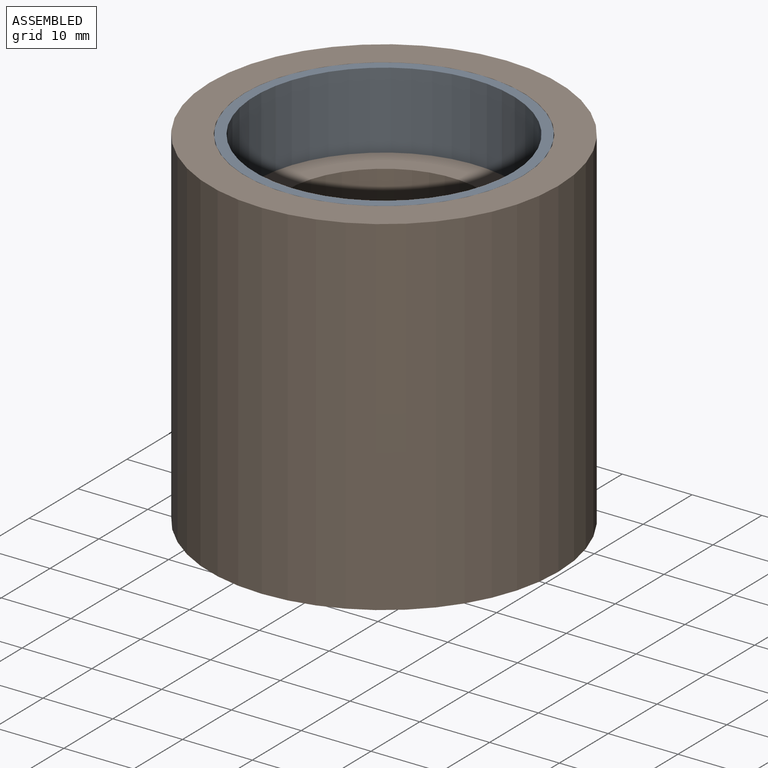
[diagram: assembled view]
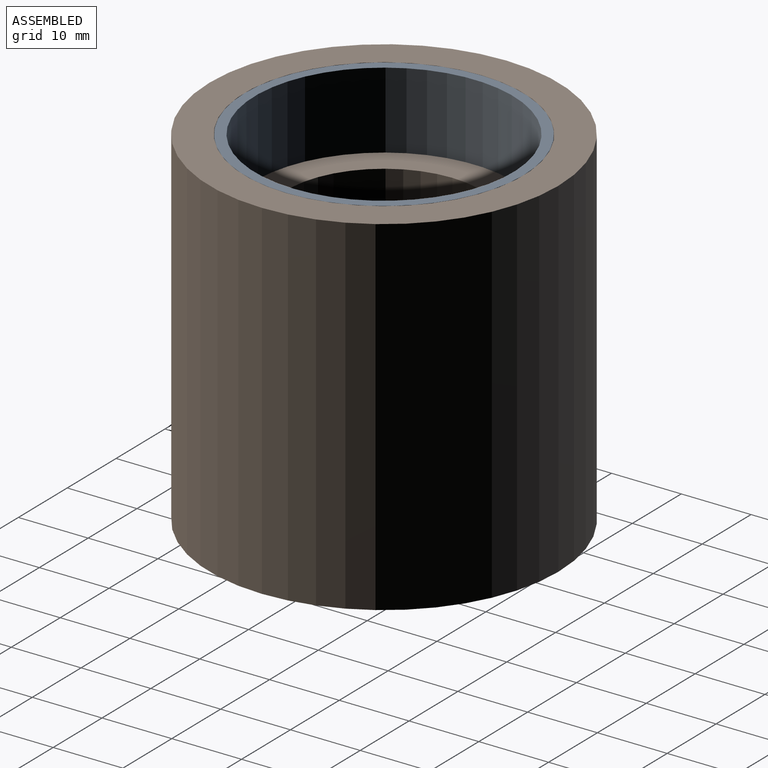
[diagram: assembled view, second angle]
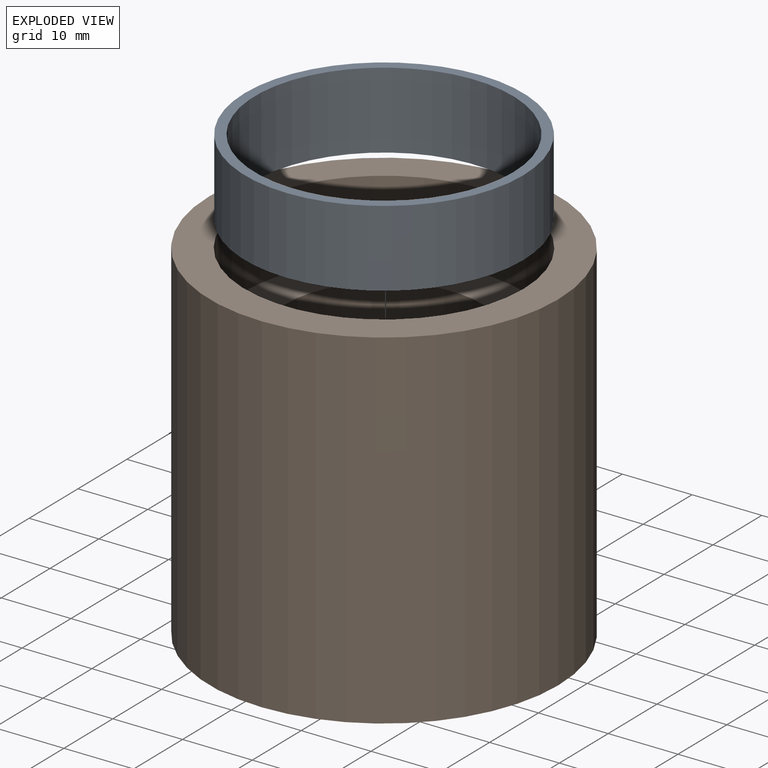
[diagram: exploded view]
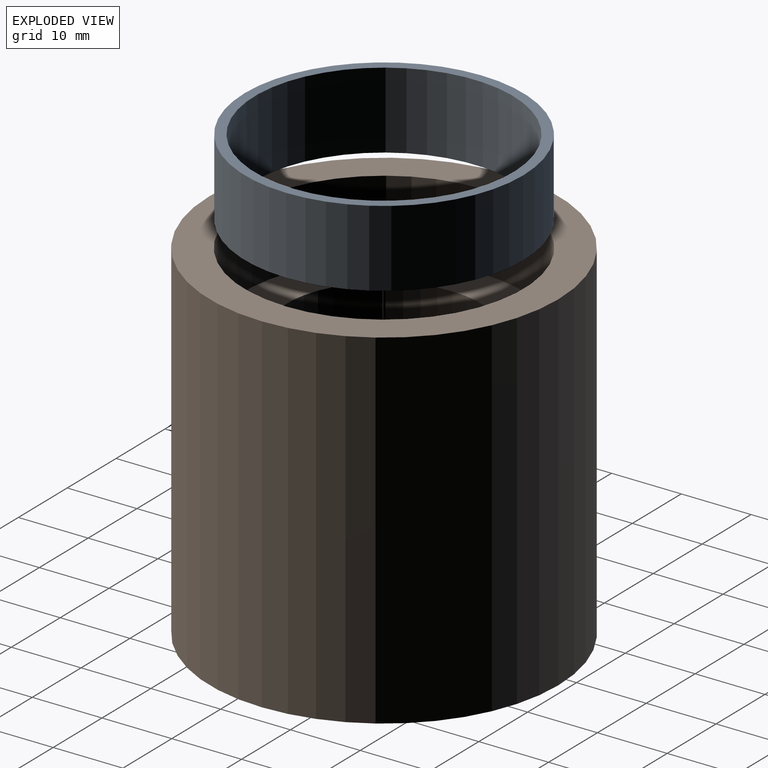
[diagram: exploded view, second angle]
ASSEMBLY  parts=2 mates=2
PART A: 4 faces, bbox 39.9x39.9x11 mm
  f0: cylinder r=18.5mm len=37mm, axis (0,0,-1), area 1278.6mm2, adj f2,f3
  f1: cylinder r=19.95mm len=39.9mm, axis (0,0,-1), area 1378.8mm2, adj f2,f3
  f2: plane 39.9x39.9mm, normal (0,0,1), area 175.2mm2, adj f0,f1
  f3: plane 39.9x39.9mm, normal (0,0,-1), area 175.2mm2, adj f0,f1
PART B: 7 faces, bbox 50x50x50 mm
  f0: plane 50x50mm, normal (0,0,-1), area 1963.5mm2, adj f6
  f1: plane 28x28mm, normal (0,0,1), area 615.8mm2, adj f2
  f2: cylinder r=14mm len=28mm, axis (0,0,1), area 2287.1mm2, adj f1,f3
  f3: plane 40x40mm, normal (0,0,1), area 640.9mm2, adj f2,f4
  f4: cylinder r=20mm len=40mm, axis (0,0,1), area 1382.3mm2, adj f3,f5
  f5: plane 50x50mm, normal (0,0,1), area 706.9mm2, adj f4,f6
  f6: cylinder r=25mm len=50mm, axis (0,0,1), area 7854mm2, adj f0,f5
PLACE A t=(-25.85,-53.13,44.36)mm
PLACE B t=(-25.85,5.32,5.36)mm fixed
MATE fastened A.f0 <-> B.f2  axis (0,0,-1) through (-25.85,5.32,44.36)mm
MATE cylindrical A.f0 <-> B.f2  axis (0,0,-1) through (-25.85,5.32,44.36)mm
